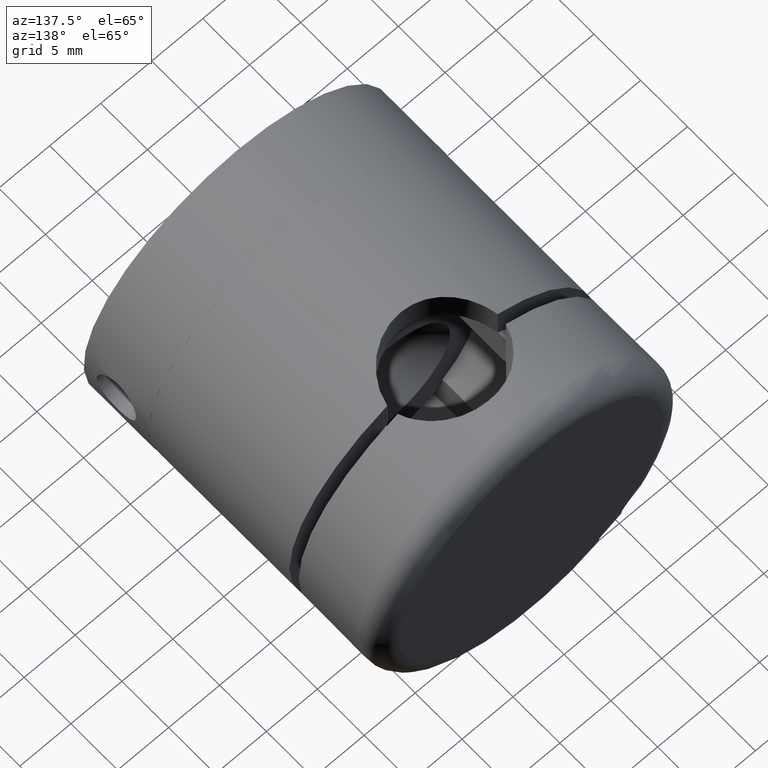
[diagram: clean part render]
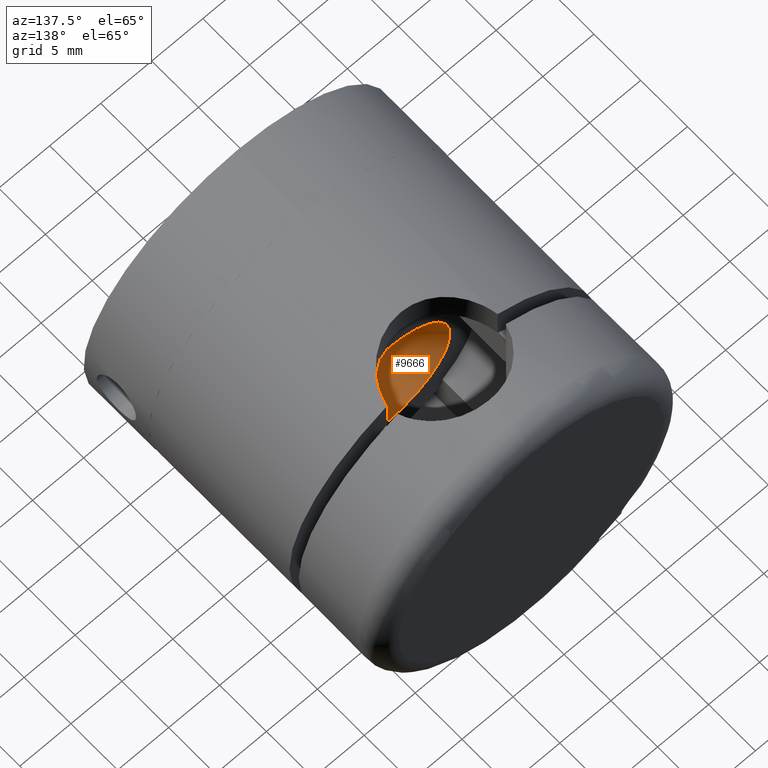
[diagram: same view with one face highlighted and labeled with its STEP entity id]
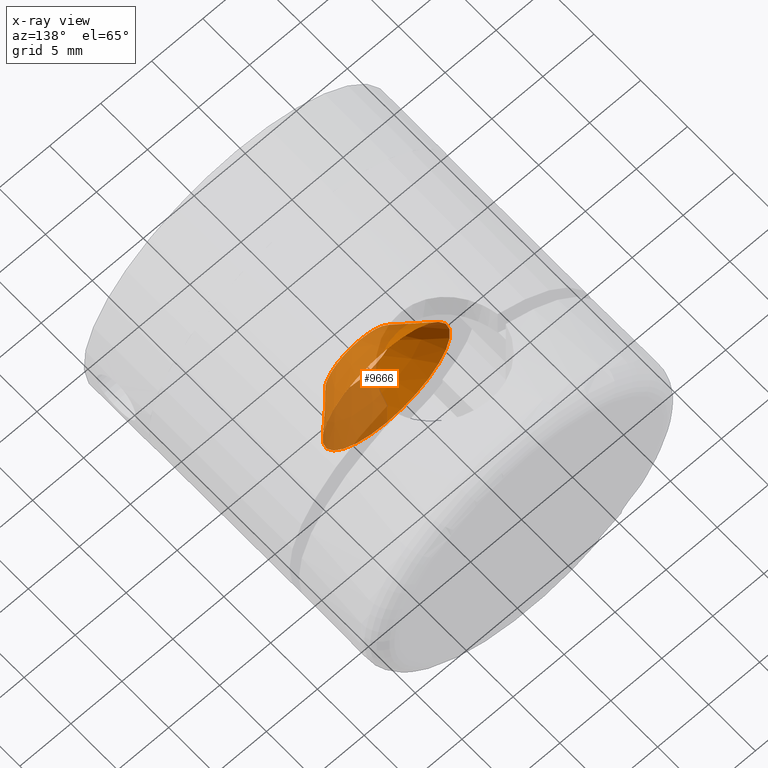
[diagram: x-ray of the same camera — body ghosted, the highlighted face saturated]
A machine part, auxiliary view. The second image highlights one B-rep face of the part: STEP entity #9666.
The next image is the same camera in x-ray: the body ghosted, the highlighted face saturated — about 57% of this face is hidden behind the body in this view.
In plain terms, the highlighted conical surface has half-angle 45 deg.
Its self-contained STEP definition (entity closure, byte-faithful):
#271 = EDGE_CURVE ( 'NONE', #10383, #10383, #15810, .T. ) ;
#1381 = FACE_BOUND ( 'NONE', #3817, .T. ) ;
#2578 = ORIENTED_EDGE ( 'NONE', *, *, #2951, .T. ) ;
#2591 = DIRECTION ( 'NONE',  ( 0.0000000000000000000, -1.000000000000000000, 0.0000000000000000000 ) ) ;
#2951 = EDGE_CURVE ( 'NONE', #6870, #6870, #11432, .T. ) ;
#3817 = EDGE_LOOP ( 'NONE', ( #9159 ) ) ;
#4392 = DIRECTION ( 'NONE',  ( 0.0000000000000000000, 0.0000000000000000000, 1.000000000000000000 ) ) ;
#4784 = EDGE_LOOP ( 'NONE', ( #2578 ) ) ;
#5052 = CARTESIAN_POINT ( 'NONE',  ( 0.0000000000000000000, 16.00000000000000000, 6.250000000000000000 ) ) ;
#5597 = AXIS2_PLACEMENT_3D ( 'NONE', #16223, #10900, #4392 ) ;
#6580 = CARTESIAN_POINT ( 'NONE',  ( 0.0000000000000000000, 16.00000000000000000, 0.0000000000000000000 ) ) ;
#6870 = VERTEX_POINT ( 'NONE', #5052 ) ;
#8030 = FACE_OUTER_BOUND ( 'NONE', #4784, .T. ) ;
#9159 = ORIENTED_EDGE ( 'NONE', *, *, #271, .T. ) ;
#9223 = CARTESIAN_POINT ( 'NONE',  ( 0.0000000000000000000, 13.15000000000000000, 0.0000000000000000000 ) ) ;
#9666 = ADVANCED_FACE ( 'NONE', ( #1381, #8030 ), #13822, .F. ) ;
#10383 = VERTEX_POINT ( 'NONE', #12808 ) ;
#10620 = DIRECTION ( 'NONE',  ( 0.0000000000000000000, 0.0000000000000000000, 1.000000000000000000 ) ) ;
#10900 = DIRECTION ( 'NONE',  ( -0.0000000000000000000, 1.000000000000000000, -0.0000000000000000000 ) ) ;
#11432 = CIRCLE ( 'NONE', #16349, 6.250000000000000000 ) ;
#11876 = DIRECTION ( 'NONE',  ( 0.0000000000000000000, 0.0000000000000000000, 1.000000000000000000 ) ) ;
#12001 = DIRECTION ( 'NONE',  ( -0.0000000000000000000, 1.000000000000000000, -0.0000000000000000000 ) ) ;
#12661 = AXIS2_PLACEMENT_3D ( 'NONE', #9223, #2591, #11876 ) ;
#12808 = CARTESIAN_POINT ( 'NONE',  ( 0.0000000000000000000, 13.15000000000000000, 3.399999999999997700 ) ) ;
#13822 = CONICAL_SURFACE ( 'NONE', #5597, 6.250000000000000000, 0.7853981633974487200 ) ;
#15810 = CIRCLE ( 'NONE', #12661, 3.399999999999997700 ) ;
#16223 = CARTESIAN_POINT ( 'NONE',  ( 0.0000000000000000000, 16.00000000000000000, 0.0000000000000000000 ) ) ;
#16349 = AXIS2_PLACEMENT_3D ( 'NONE', #6580, #12001, #10620 ) ;